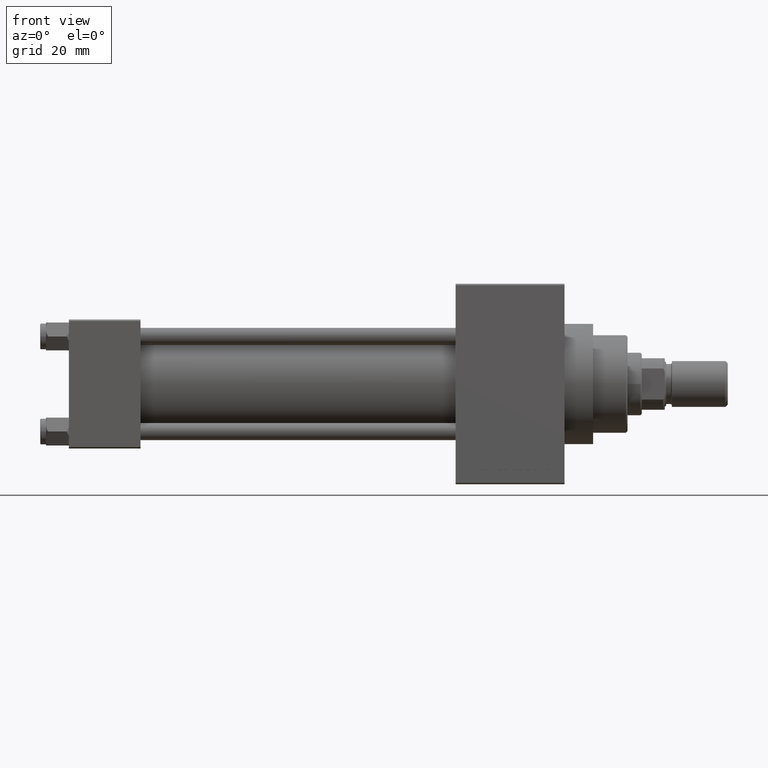
[diagram: clean part render]
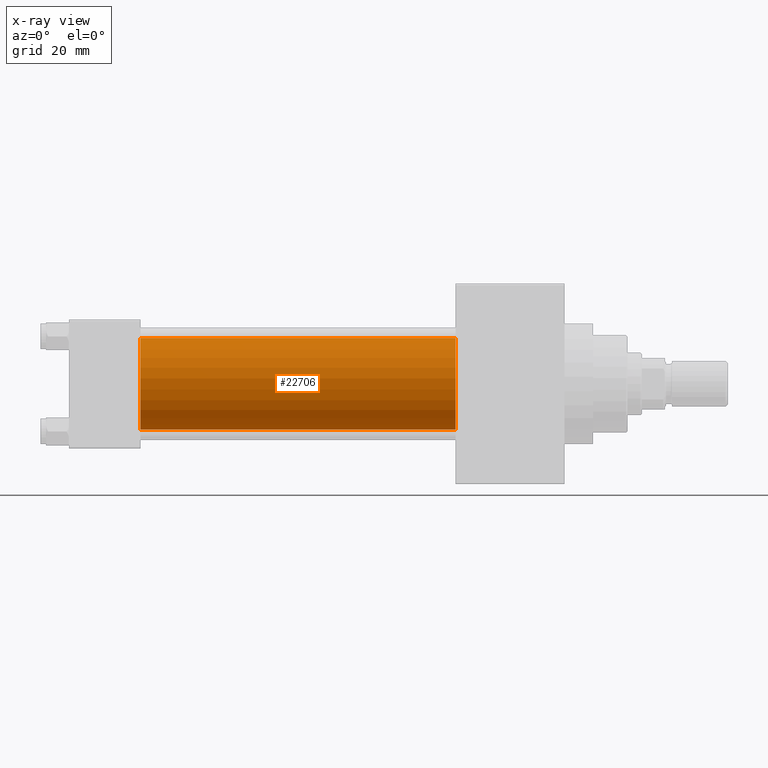
[diagram: x-ray — body ghosted, one internal face saturated and labeled with its STEP entity id]
A machine part, front view, then the same camera in x-ray: the body is ghosted and one INTERNAL B-rep face — a face not visible from any outside direction — is saturated and labeled: STEP entity #22706.
In plain terms, the highlighted cylindrical surface (partial cylindrical patch) has radius 16 mm, axis along (-1, -0, -0).
Its self-contained STEP definition (entity closure, byte-faithful):
#1037 = CARTESIAN_POINT ( 'NONE',  ( 135.0000000000000000, -2.602085213965210642E-15, 0.000000000000000000 ) ) ;
#1786 = CARTESIAN_POINT ( 'NONE',  ( 25.00000000000000000, -6.426503353294456087E-16, -16.00000000000000000 ) ) ;
#3196 = LINE ( 'NONE', #6468, #43485 ) ;
#4796 = DIRECTION ( 'NONE',  ( 0.000000000000000000, 0.000000000000000000, 1.000000000000000000 ) ) ;
#4828 = VERTEX_POINT ( 'NONE', #28840 ) ;
#6468 = CARTESIAN_POINT ( 'NONE',  ( 135.0000000000000000, -6.426503353294456087E-16, -16.00000000000000000 ) ) ;
#10180 = EDGE_CURVE ( 'NONE', #4828, #11000, #3196, .T. ) ;
#11000 = VERTEX_POINT ( 'NONE', #1786 ) ;
#12803 = ORIENTED_EDGE ( 'NONE', *, *, #36730, .T. ) ;
#12831 = CYLINDRICAL_SURFACE ( 'NONE', #15807, 16.00000000000000000 ) ;
#15807 = AXIS2_PLACEMENT_3D ( 'NONE', #1037, #31446, #4796 ) ;
#16486 = VECTOR ( 'NONE', #46054, 1000.000000000000000 ) ;
#18946 = AXIS2_PLACEMENT_3D ( 'NONE', #42847, #47096, #27282 ) ;
#19284 = ORIENTED_EDGE ( 'NONE', *, *, #46869, .F. ) ;
#19874 = FACE_OUTER_BOUND ( 'NONE', #39339, .T. ) ;
#20461 = DIRECTION ( 'NONE',  ( 0.000000000000000000, 0.000000000000000000, -1.000000000000000000 ) ) ;
#21300 = CIRCLE ( 'NONE', #34986, 16.00000000000000000 ) ;
#22706 = ADVANCED_FACE ( 'NONE', ( #19874 ), #12831, .F. ) ;
#23761 = CIRCLE ( 'NONE', #18946, 16.00000000000000000 ) ;
#27226 = CARTESIAN_POINT ( 'NONE',  ( 135.0000000000000000, -2.602085213965210642E-15, 16.00000000000000000 ) ) ;
#27282 = DIRECTION ( 'NONE',  ( 0.000000000000000000, 0.000000000000000000, -1.000000000000000000 ) ) ;
#28840 = CARTESIAN_POINT ( 'NONE',  ( 135.0000000000000000, -6.426503353294456087E-16, -16.00000000000000000 ) ) ;
#31055 = VERTEX_POINT ( 'NONE', #38625 ) ;
#31244 = VERTEX_POINT ( 'NONE', #34990 ) ;
#31446 = DIRECTION ( 'NONE',  ( -1.000000000000000000, -0.000000000000000000, -0.000000000000000000 ) ) ;
#32938 = ORIENTED_EDGE ( 'NONE', *, *, #48713, .F. ) ;
#33858 = DIRECTION ( 'NONE',  ( -1.000000000000000000, -0.000000000000000000, -0.000000000000000000 ) ) ;
#34986 = AXIS2_PLACEMENT_3D ( 'NONE', #39309, #35054, #20461 ) ;
#34990 = CARTESIAN_POINT ( 'NONE',  ( 135.0000000000000000, -2.602085213965210642E-15, 16.00000000000000000 ) ) ;
#35054 = DIRECTION ( 'NONE',  ( 1.000000000000000000, 0.000000000000000000, 0.000000000000000000 ) ) ;
#35981 = ORIENTED_EDGE ( 'NONE', *, *, #10180, .T. ) ;
#36730 = EDGE_CURVE ( 'NONE', #31244, #4828, #23761, .T. ) ;
#38625 = CARTESIAN_POINT ( 'NONE',  ( 25.00000000000000000, -2.602085213965210642E-15, 16.00000000000000000 ) ) ;
#39309 = CARTESIAN_POINT ( 'NONE',  ( 25.00000000000000000, -2.602085213965210642E-15, 0.000000000000000000 ) ) ;
#39339 = EDGE_LOOP ( 'NONE', ( #12803, #35981, #32938, #19284 ) ) ;
#41788 = LINE ( 'NONE', #27226, #16486 ) ;
#42847 = CARTESIAN_POINT ( 'NONE',  ( 135.0000000000000000, -2.602085213965210642E-15, 0.000000000000000000 ) ) ;
#43485 = VECTOR ( 'NONE', #33858, 1000.000000000000000 ) ;
#46054 = DIRECTION ( 'NONE',  ( -1.000000000000000000, -0.000000000000000000, -0.000000000000000000 ) ) ;
#46869 = EDGE_CURVE ( 'NONE', #31244, #31055, #41788, .T. ) ;
#47096 = DIRECTION ( 'NONE',  ( 1.000000000000000000, 0.000000000000000000, 0.000000000000000000 ) ) ;
#48713 = EDGE_CURVE ( 'NONE', #31055, #11000, #21300, .T. ) ;